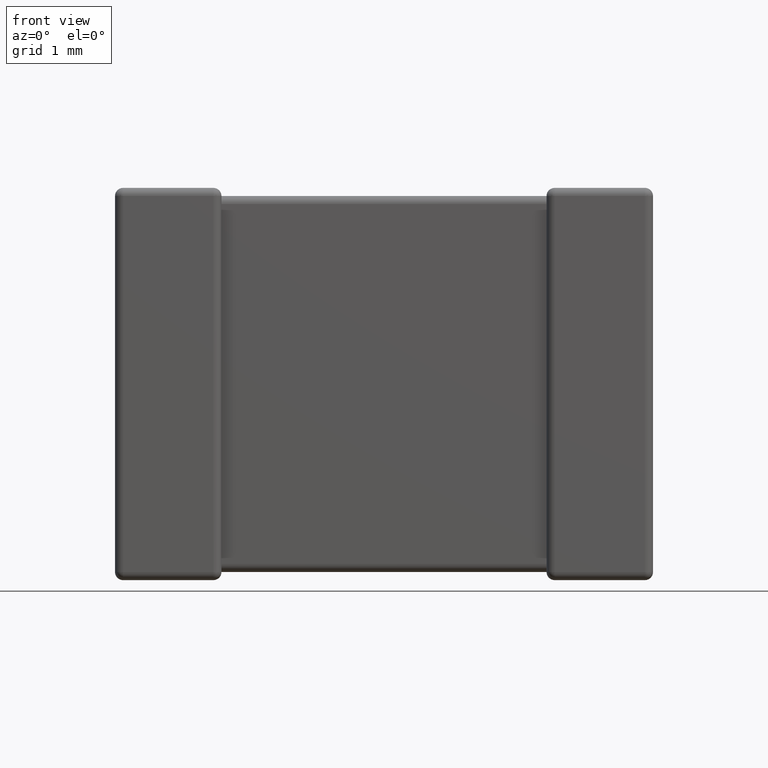
[diagram: clean part render]
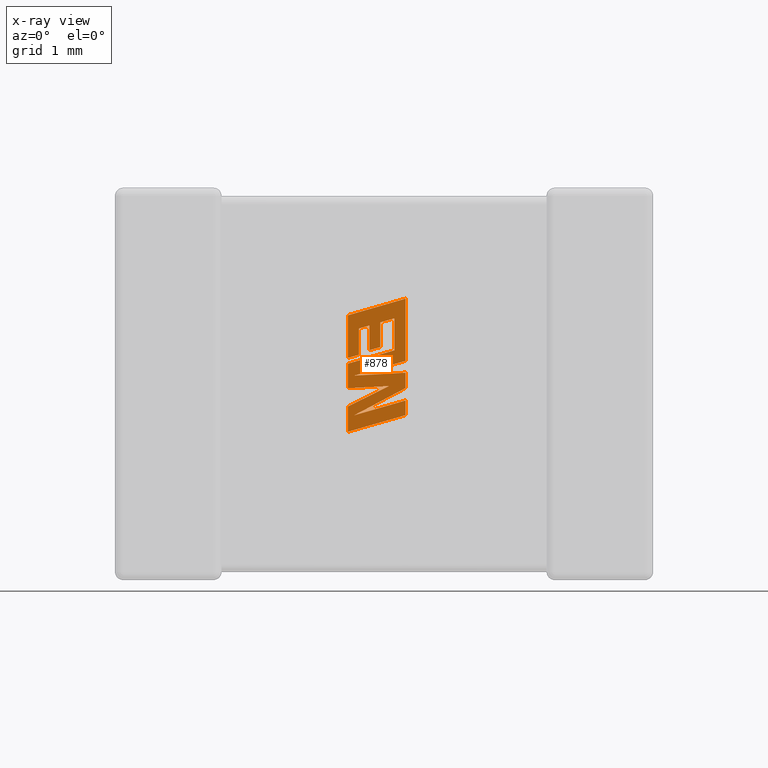
[diagram: x-ray — body ghosted, one internal face saturated and labeled with its STEP entity id]
A machine part, front view, then the same camera in x-ray: the body is ghosted and one INTERNAL B-rep face — a face not visible from any outside direction — is saturated and labeled: STEP entity #878.
In plain terms, the highlighted planar face has unit normal (0, -1, 0).
Its self-contained STEP definition (entity closure, byte-faithful):
#27 = DIRECTION ( 'NONE',  ( 0.9611542233438712390, 0.000000000000000000, 0.2760118818968482213 ) ) ;
#43 = CARTESIAN_POINT ( 'NONE',  ( 2.077461455074788521, 2.627200000000000202, -1.951152340343301539 ) ) ;
#105 = LINE ( 'NONE', #3709, #1289 ) ;
#114 = CARTESIAN_POINT ( 'NONE',  ( 2.077461455074788521, 2.627200000000000202, -2.176825446628522176 ) ) ;
#209 = DIRECTION ( 'NONE',  ( 0.000000000000000000, 0.000000000000000000, -1.000000000000000000 ) ) ;
#256 = DIRECTION ( 'NONE',  ( 0.9610853065513847993, 0.000000000000000000, 0.2762517575166369421 ) ) ;
#273 = CARTESIAN_POINT ( 'NONE',  ( 2.592000000000009408, 2.627200000000000202, -1.787331774155181074 ) ) ;
#281 = LINE ( 'NONE', #976, #2149 ) ;
#292 = VECTOR ( 'NONE', #1937, 1000.000000000000227 ) ;
#293 = VERTEX_POINT ( 'NONE', #273 ) ;
#326 = CARTESIAN_POINT ( 'NONE',  ( 2.494108729707781080, 2.627200000000000202, -1.449742222008734815 ) ) ;
#442 = ORIENTED_EDGE ( 'NONE', *, *, #3723, .F. ) ;
#447 = CARTESIAN_POINT ( 'NONE',  ( 2.131713901613331519, 2.627200000000000202, -2.030318652395434409 ) ) ;
#459 = VECTOR ( 'NONE', #3144, 1000.000000000000000 ) ;
#465 = ORIENTED_EDGE ( 'NONE', *, *, #3654, .F. ) ;
#521 = LINE ( 'NONE', #4477, #1609 ) ;
#576 = EDGE_CURVE ( 'NONE', #1191, #2624, #4364, .T. ) ;
#577 = CARTESIAN_POINT ( 'NONE',  ( 2.592000000000009408, 2.627200000000000202, -1.898139623118868524 ) ) ;
#594 = CARTESIAN_POINT ( 'NONE',  ( 2.366225839607042136, 2.627200000000000202, -1.200947889792602474 ) ) ;
#595 = AXIS2_PLACEMENT_3D ( 'NONE', #2097, #3451, #4156 ) ;
#606 = VERTEX_POINT ( 'NONE', #1364 ) ;
#644 = CARTESIAN_POINT ( 'NONE',  ( 2.077461455074788521, 2.627200000000000202, -1.569502186183909798 ) ) ;
#649 = PLANE ( 'NONE',  #595 ) ;
#693 = EDGE_CURVE ( 'NONE', #2568, #293, #4015, .T. ) ;
#718 = LINE ( 'NONE', #2178, #1285 ) ;
#730 = LINE ( 'NONE', #2194, #4670 ) ;
#831 = CARTESIAN_POINT ( 'NONE',  ( 2.133919857998914704, 2.627200000000000202, -1.675837106146426336 ) ) ;
#878 = ADVANCED_FACE ( 'NONE', ( #3894 ), #649, .T. ) ;
#885 = VECTOR ( 'NONE', #2629, 1000.000000000000114 ) ;
#886 = VERTEX_POINT ( 'NONE', #3521 ) ;
#913 = LINE ( 'NONE', #2324, #292 ) ;
#914 = VECTOR ( 'NONE', #209, 1000.000000000000000 ) ;
#948 = LINE ( 'NONE', #1643, #3041 ) ;
#962 = VERTEX_POINT ( 'NONE', #1790 ) ;
#966 = CARTESIAN_POINT ( 'NONE',  ( 2.077461455074788521, 2.627200000000000202, -1.569502186183909798 ) ) ;
#976 = CARTESIAN_POINT ( 'NONE',  ( 2.077461455074788521, 2.627200000000000202, -1.518180063271352687 ) ) ;
#980 = VECTOR ( 'NONE', #3200, 1000.000000000000114 ) ;
#1091 = CARTESIAN_POINT ( 'NONE',  ( 2.592000000000009408, 2.627200000000000202, -1.544308912229137354 ) ) ;
#1132 = ORIENTED_EDGE ( 'NONE', *, *, #1390, .F. ) ;
#1172 = ORIENTED_EDGE ( 'NONE', *, *, #2008, .F. ) ;
#1191 = VERTEX_POINT ( 'NONE', #3573 ) ;
#1201 = VECTOR ( 'NONE', #27, 1000.000000000000114 ) ;
#1252 = DIRECTION ( 'NONE',  ( -0.9610674221107078363, 0.000000000000000000, -0.2763139702539094134 ) ) ;
#1285 = VECTOR ( 'NONE', #3589, 1000.000000000000114 ) ;
#1289 = VECTOR ( 'NONE', #3093, 999.9999999999998863 ) ;
#1311 = VERTEX_POINT ( 'NONE', #4019 ) ;
#1321 = ORIENTED_EDGE ( 'NONE', *, *, #2997, .F. ) ;
#1363 = EDGE_CURVE ( 'NONE', #3547, #1191, #4442, .T. ) ;
#1364 = CARTESIAN_POINT ( 'NONE',  ( 2.077461455074788521, 2.627200000000000202, -1.518180063271352687 ) ) ;
#1384 = CARTESIAN_POINT ( 'NONE',  ( 2.077461455074788521, 2.627200000000000202, -1.138056229662791852 ) ) ;
#1390 = EDGE_CURVE ( 'NONE', #1853, #3296, #913, .T. ) ;
#1411 = EDGE_CURVE ( 'NONE', #3000, #3547, #3784, .T. ) ;
#1413 = ORIENTED_EDGE ( 'NONE', *, *, #2469, .F. ) ;
#1437 = VERTEX_POINT ( 'NONE', #2398 ) ;
#1466 = CARTESIAN_POINT ( 'NONE',  ( 2.592000000000009408, 2.627200000000000202, -1.452722609482480554 ) ) ;
#1596 = DIRECTION ( 'NONE',  ( 0.000000000000000000, 0.000000000000000000, 1.000000000000000000 ) ) ;
#1609 = VECTOR ( 'NONE', #4121, 1000.000000000000000 ) ;
#1633 = VERTEX_POINT ( 'NONE', #4484 ) ;
#1643 = CARTESIAN_POINT ( 'NONE',  ( 2.175401225116401438, 2.627200000000000202, -1.255934090619534649 ) ) ;
#1728 = EDGE_CURVE ( 'NONE', #2272, #1311, #4600, .T. ) ;
#1743 = DIRECTION ( 'NONE',  ( 0.000000000000000000, 0.000000000000000000, 1.000000000000000000 ) ) ;
#1788 = VERTEX_POINT ( 'NONE', #326 ) ;
#1790 = CARTESIAN_POINT ( 'NONE',  ( 2.133919857998914704, 2.627200000000000202, -1.675837106146426336 ) ) ;
#1806 = LINE ( 'NONE', #4324, #1201 ) ;
#1853 = VERTEX_POINT ( 'NONE', #3611 ) ;
#1879 = LINE ( 'NONE', #1466, #4564 ) ;
#1925 = VERTEX_POINT ( 'NONE', #3679 ) ;
#1936 = CARTESIAN_POINT ( 'NONE',  ( 2.175401225116401438, 2.627200000000000202, -1.255934090619534649 ) ) ;
#1937 = DIRECTION ( 'NONE',  ( -0.9601763114327565019, 0.000000000000000000, -0.2793947940878393488 ) ) ;
#1940 = VERTEX_POINT ( 'NONE', #447 ) ;
#1998 = CARTESIAN_POINT ( 'NONE',  ( 2.366225839607042136, 2.627200000000000202, -1.421762559585259877 ) ) ;
#2002 = EDGE_CURVE ( 'NONE', #3296, #1437, #948, .T. ) ;
#2008 = EDGE_CURVE ( 'NONE', #2624, #1925, #3092, .T. ) ;
#2012 = EDGE_CURVE ( 'NONE', #3194, #1788, #3847, .T. ) ;
#2069 = CARTESIAN_POINT ( 'NONE',  ( 2.445054402578548114, 2.627200000000000202, -1.768838267633026984 ) ) ;
#2079 = ORIENTED_EDGE ( 'NONE', *, *, #2002, .F. ) ;
#2097 = CARTESIAN_POINT ( 'NONE',  ( -0.8610152987309996897, 2.627200000000000202, 0.007919489514314502487 ) ) ;
#2121 = VECTOR ( 'NONE', #3434, 1000.000000000000000 ) ;
#2149 = VECTOR ( 'NONE', #1743, 1000.000000000000000 ) ;
#2155 = EDGE_CURVE ( 'NONE', #1940, #1633, #1806, .T. ) ;
#2178 = CARTESIAN_POINT ( 'NONE',  ( 2.366225839607042136, 2.627200000000000202, -1.421762559585259877 ) ) ;
#2194 = CARTESIAN_POINT ( 'NONE',  ( 2.494108729707781080, 2.627200000000000202, -1.449742222008734815 ) ) ;
#2211 = EDGE_CURVE ( 'NONE', #293, #1940, #2905, .T. ) ;
#2272 = VERTEX_POINT ( 'NONE', #3300 ) ;
#2324 = CARTESIAN_POINT ( 'NONE',  ( 2.271105313117772084, 2.627200000000000202, -1.228085846872917664 ) ) ;
#2397 = ORIENTED_EDGE ( 'NONE', *, *, #1411, .F. ) ;
#2398 = CARTESIAN_POINT ( 'NONE',  ( 2.175401225116401438, 2.627200000000000202, -1.490363109686198895 ) ) ;
#2419 = VECTOR ( 'NONE', #2914, 1000.000000000000000 ) ;
#2428 = ORIENTED_EDGE ( 'NONE', *, *, #3570, .F. ) ;
#2432 = DIRECTION ( 'NONE',  ( -0.9985542843760948362, 0.000000000000000000, -0.05375259206908060416 ) ) ;
#2455 = LINE ( 'NONE', #577, #914 ) ;
#2469 = EDGE_CURVE ( 'NONE', #2715, #3617, #718, .T. ) ;
#2531 = CARTESIAN_POINT ( 'NONE',  ( 2.494108729707781080, 2.627200000000000202, -1.164510496710604137 ) ) ;
#2536 = ORIENTED_EDGE ( 'NONE', *, *, #3972, .F. ) ;
#2567 = CARTESIAN_POINT ( 'NONE',  ( 2.592000000000009408, 2.627200000000000202, -2.028891821030526010 ) ) ;
#2568 = VERTEX_POINT ( 'NONE', #3182 ) ;
#2602 = CARTESIAN_POINT ( 'NONE',  ( 2.077461455074788521, 2.627200000000000202, -2.176825446628522176 ) ) ;
#2605 = VECTOR ( 'NONE', #3711, 1000.000000000000227 ) ;
#2624 = VERTEX_POINT ( 'NONE', #3307 ) ;
#2629 = DIRECTION ( 'NONE',  ( 0.8958676361826827250, 0.000000000000000000, 0.4443210308329466618 ) ) ;
#2661 = VECTOR ( 'NONE', #2432, 1000.000000000000114 ) ;
#2670 = DIRECTION ( 'NONE',  ( 0.000000000000000000, 0.000000000000000000, 1.000000000000000000 ) ) ;
#2672 = CARTESIAN_POINT ( 'NONE',  ( 2.077461455074788521, 2.627200000000000202, -1.788625948747415650 ) ) ;
#2715 = VERTEX_POINT ( 'NONE', #1998 ) ;
#2769 = LINE ( 'NONE', #594, #459 ) ;
#2848 = EDGE_CURVE ( 'NONE', #1437, #606, #105, .T. ) ;
#2873 = ORIENTED_EDGE ( 'NONE', *, *, #4200, .F. ) ;
#2905 = LINE ( 'NONE', #4304, #2952 ) ;
#2914 = DIRECTION ( 'NONE',  ( 0.000000000000000000, 0.000000000000000000, -1.000000000000000000 ) ) ;
#2944 = ORIENTED_EDGE ( 'NONE', *, *, #2848, .F. ) ;
#2952 = VECTOR ( 'NONE', #3701, 1000.000000000000114 ) ;
#2972 = ORIENTED_EDGE ( 'NONE', *, *, #576, .F. ) ;
#2997 = EDGE_CURVE ( 'NONE', #3268, #962, #4662, .T. ) ;
#3000 = VERTEX_POINT ( 'NONE', #2567 ) ;
#3041 = VECTOR ( 'NONE', #3474, 1000.000000000000000 ) ;
#3087 = ORIENTED_EDGE ( 'NONE', *, *, #4313, .F. ) ;
#3092 = LINE ( 'NONE', #2069, #2661 ) ;
#3093 = DIRECTION ( 'NONE',  ( -0.9619530280415479195, 0.000000000000000000, -0.2732148821746301914 ) ) ;
#3136 = ORIENTED_EDGE ( 'NONE', *, *, #1728, .F. ) ;
#3144 = DIRECTION ( 'NONE',  ( 0.000000000000000000, 0.000000000000000000, -1.000000000000000000 ) ) ;
#3182 = CARTESIAN_POINT ( 'NONE',  ( 2.592000000000009408, 2.627200000000000202, -1.650160399609248874 ) ) ;
#3194 = VERTEX_POINT ( 'NONE', #966 ) ;
#3200 = DIRECTION ( 'NONE',  ( 0.9610029908221285888, 0.000000000000000000, 0.2765379750249931656 ) ) ;
#3268 = VERTEX_POINT ( 'NONE', #3715 ) ;
#3296 = VERTEX_POINT ( 'NONE', #1936 ) ;
#3300 = CARTESIAN_POINT ( 'NONE',  ( 2.077461455074788521, 2.627200000000000202, -1.138056229662791852 ) ) ;
#3307 = CARTESIAN_POINT ( 'NONE',  ( 2.445054402578548114, 2.627200000000000202, -1.768838267633026984 ) ) ;
#3373 = LINE ( 'NONE', #2672, #4239 ) ;
#3417 = CARTESIAN_POINT ( 'NONE',  ( 2.592000000000009408, 2.627200000000000202, -2.028891821030526010 ) ) ;
#3427 = EDGE_LOOP ( 'NONE', ( #3483, #2397, #4244, #3538, #4557, #4151, #2873, #1321, #3664, #3136, #3087, #2944, #2079, #1132, #2536, #1413, #442, #465, #2428, #3623, #4206, #1172, #2972 ) ) ;
#3432 = EDGE_CURVE ( 'NONE', #1633, #3000, #2455, .T. ) ;
#3434 = DIRECTION ( 'NONE',  ( 0.000000000000000000, 0.000000000000000000, 1.000000000000000000 ) ) ;
#3451 = DIRECTION ( 'NONE',  ( 0.000000000000000000, -1.000000000000000000, 0.000000000000000000 ) ) ;
#3474 = DIRECTION ( 'NONE',  ( 0.000000000000000000, 0.000000000000000000, -1.000000000000000000 ) ) ;
#3483 = ORIENTED_EDGE ( 'NONE', *, *, #1363, .F. ) ;
#3521 = CARTESIAN_POINT ( 'NONE',  ( 2.366225839607042136, 2.627200000000000202, -1.200947889792602474 ) ) ;
#3538 = ORIENTED_EDGE ( 'NONE', *, *, #2155, .F. ) ;
#3547 = VERTEX_POINT ( 'NONE', #2602 ) ;
#3570 = EDGE_CURVE ( 'NONE', #1788, #4036, #730, .T. ) ;
#3573 = CARTESIAN_POINT ( 'NONE',  ( 2.077461455074788521, 2.627200000000000202, -1.951152340343301539 ) ) ;
#3577 = DIRECTION ( 'NONE',  ( 0.000000000000000000, 0.000000000000000000, -1.000000000000000000 ) ) ;
#3589 = DIRECTION ( 'NONE',  ( -0.9615454294334447871, 0.000000000000000000, -0.2746459304917005517 ) ) ;
#3611 = CARTESIAN_POINT ( 'NONE',  ( 2.271105313117772084, 2.627200000000000202, -1.228085846872917664 ) ) ;
#3617 = VERTEX_POINT ( 'NONE', #4422 ) ;
#3623 = ORIENTED_EDGE ( 'NONE', *, *, #2012, .F. ) ;
#3648 = DIRECTION ( 'NONE',  ( -0.9611638845408968512, 0.000000000000000000, -0.2759782365590690567 ) ) ;
#3654 = EDGE_CURVE ( 'NONE', #4036, #886, #521, .T. ) ;
#3664 = ORIENTED_EDGE ( 'NONE', *, *, #4664, .F. ) ;
#3679 = CARTESIAN_POINT ( 'NONE',  ( 2.077461455074788521, 2.627200000000000202, -1.788625948747415650 ) ) ;
#3692 = VECTOR ( 'NONE', #3648, 1000.000000000000000 ) ;
#3701 = DIRECTION ( 'NONE',  ( -0.8843386665637650301, 0.000000000000000000, -0.4668459304955136502 ) ) ;
#3709 = CARTESIAN_POINT ( 'NONE',  ( 2.175401225116401438, 2.627200000000000202, -1.490363109686198895 ) ) ;
#3711 = DIRECTION ( 'NONE',  ( 0.9984327301130250243, 0.000000000000000000, 0.05596501978067342647 ) ) ;
#3715 = CARTESIAN_POINT ( 'NONE',  ( 2.592000000000009408, 2.627200000000000202, -1.544308912229137354 ) ) ;
#3723 = EDGE_CURVE ( 'NONE', #886, #2715, #2769, .T. ) ;
#3784 = LINE ( 'NONE', #3417, #4052 ) ;
#3847 = LINE ( 'NONE', #644, #4577 ) ;
#3894 = FACE_OUTER_BOUND ( 'NONE', #3427, .T. ) ;
#3924 = VECTOR ( 'NONE', #4032, 1000.000000000000000 ) ;
#3963 = CARTESIAN_POINT ( 'NONE',  ( 2.271105313117772084, 2.627200000000000202, -1.448931806827066682 ) ) ;
#3965 = CARTESIAN_POINT ( 'NONE',  ( 2.592000000000009408, 2.627200000000000202, -1.650160399609248874 ) ) ;
#3972 = EDGE_CURVE ( 'NONE', #3617, #1853, #4672, .T. ) ;
#4015 = LINE ( 'NONE', #3965, #2419 ) ;
#4019 = CARTESIAN_POINT ( 'NONE',  ( 2.592000000000009408, 2.627200000000000202, -0.9899927494813206552 ) ) ;
#4032 = DIRECTION ( 'NONE',  ( 0.000000000000000000, 0.000000000000000000, 1.000000000000000000 ) ) ;
#4036 = VERTEX_POINT ( 'NONE', #2531 ) ;
#4052 = VECTOR ( 'NONE', #1252, 1000.000000000000227 ) ;
#4056 = LINE ( 'NONE', #831, #2605 ) ;
#4121 = DIRECTION ( 'NONE',  ( -0.9617234872620624708, 0.000000000000000000, -0.2740217765953968931 ) ) ;
#4151 = ORIENTED_EDGE ( 'NONE', *, *, #693, .F. ) ;
#4156 = DIRECTION ( 'NONE',  ( 0.000000000000000000, 0.000000000000000000, -1.000000000000000000 ) ) ;
#4200 = EDGE_CURVE ( 'NONE', #962, #2568, #4056, .T. ) ;
#4206 = ORIENTED_EDGE ( 'NONE', *, *, #4435, .F. ) ;
#4239 = VECTOR ( 'NONE', #1596, 1000.000000000000000 ) ;
#4244 = ORIENTED_EDGE ( 'NONE', *, *, #3432, .F. ) ;
#4304 = CARTESIAN_POINT ( 'NONE',  ( 2.592000000000009408, 2.627200000000000202, -1.787331774155181074 ) ) ;
#4313 = EDGE_CURVE ( 'NONE', #606, #2272, #281, .T. ) ;
#4324 = CARTESIAN_POINT ( 'NONE',  ( 2.131713901613331519, 2.627200000000000202, -2.030318652395434409 ) ) ;
#4364 = LINE ( 'NONE', #43, #885 ) ;
#4422 = CARTESIAN_POINT ( 'NONE',  ( 2.271105313117772084, 2.627200000000000202, -1.448931806827066682 ) ) ;
#4435 = EDGE_CURVE ( 'NONE', #1925, #3194, #3373, .T. ) ;
#4442 = LINE ( 'NONE', #114, #2121 ) ;
#4477 = CARTESIAN_POINT ( 'NONE',  ( 2.494108729707781080, 2.627200000000000202, -1.164510496710604137 ) ) ;
#4484 = CARTESIAN_POINT ( 'NONE',  ( 2.592000000000009408, 2.627200000000000202, -1.898139623118868524 ) ) ;
#4557 = ORIENTED_EDGE ( 'NONE', *, *, #2211, .F. ) ;
#4564 = VECTOR ( 'NONE', #3577, 1000.000000000000000 ) ;
#4577 = VECTOR ( 'NONE', #256, 1000.000000000000114 ) ;
#4600 = LINE ( 'NONE', #1384, #980 ) ;
#4662 = LINE ( 'NONE', #1091, #3692 ) ;
#4664 = EDGE_CURVE ( 'NONE', #1311, #3268, #1879, .T. ) ;
#4670 = VECTOR ( 'NONE', #2670, 1000.000000000000000 ) ;
#4672 = LINE ( 'NONE', #3963, #3924 ) ;